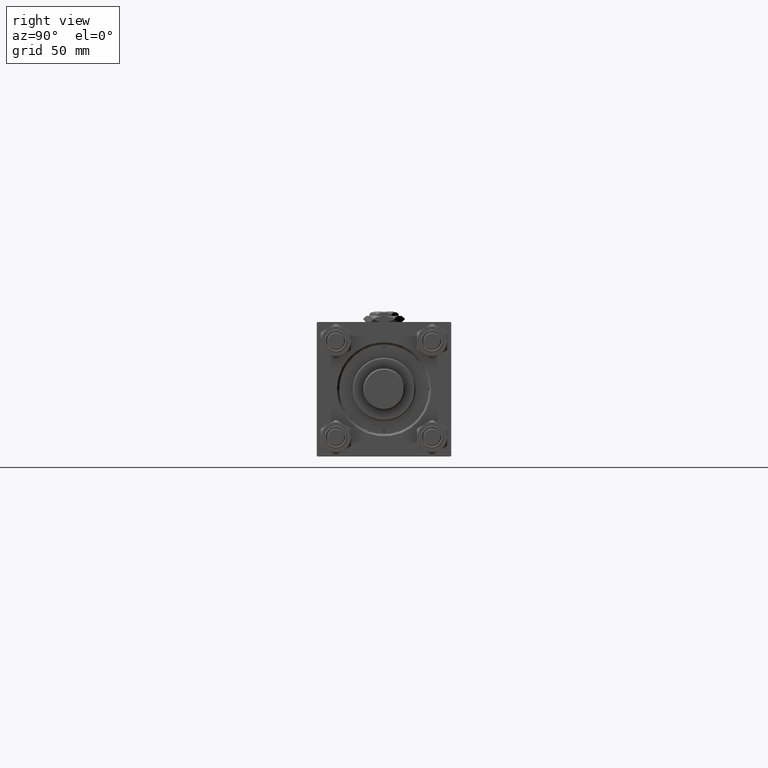
[diagram: clean part render]
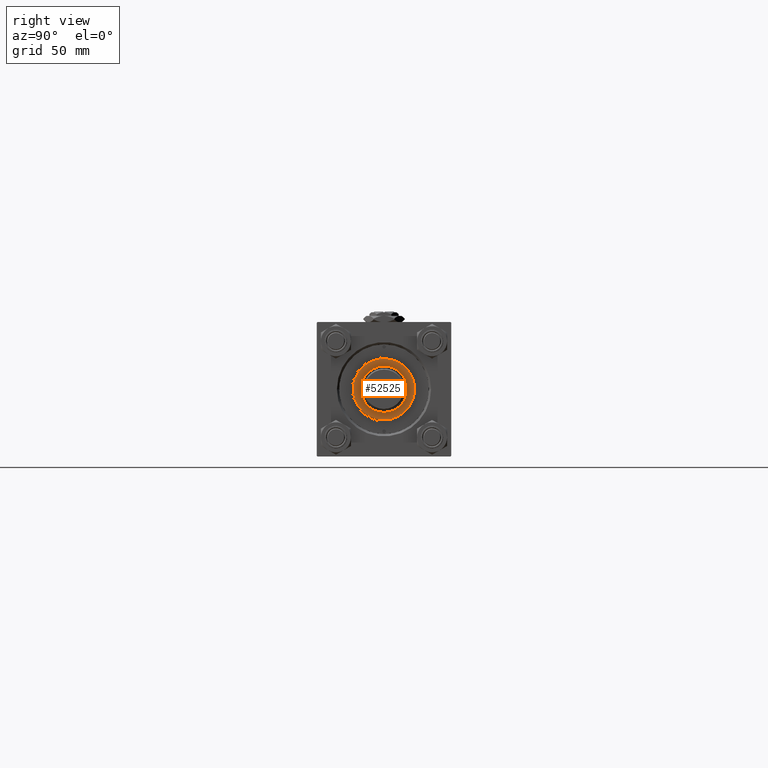
[diagram: same view with one face highlighted and labeled with its STEP entity id]
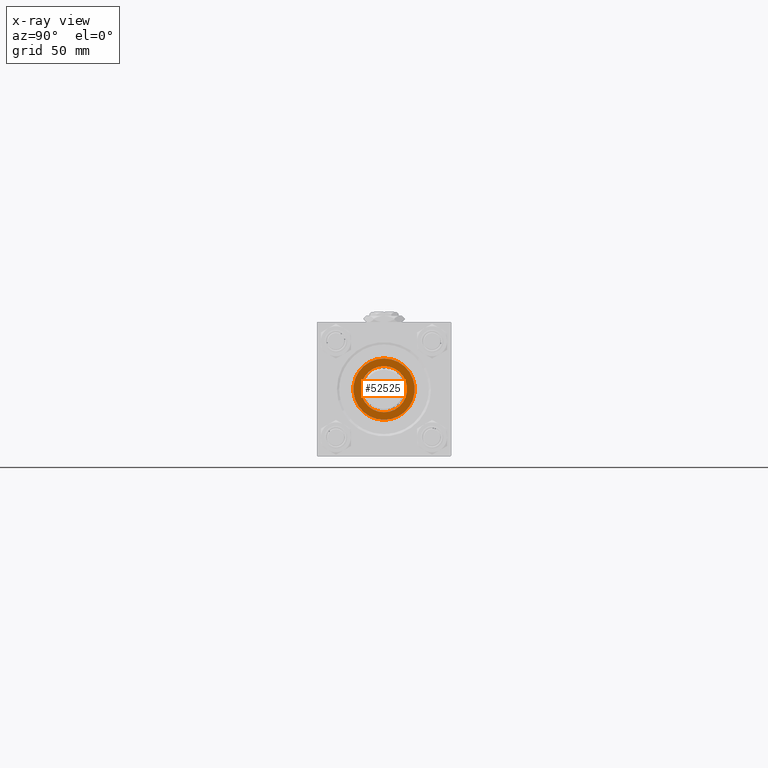
[diagram: x-ray of the same camera — body ghosted, the highlighted face saturated]
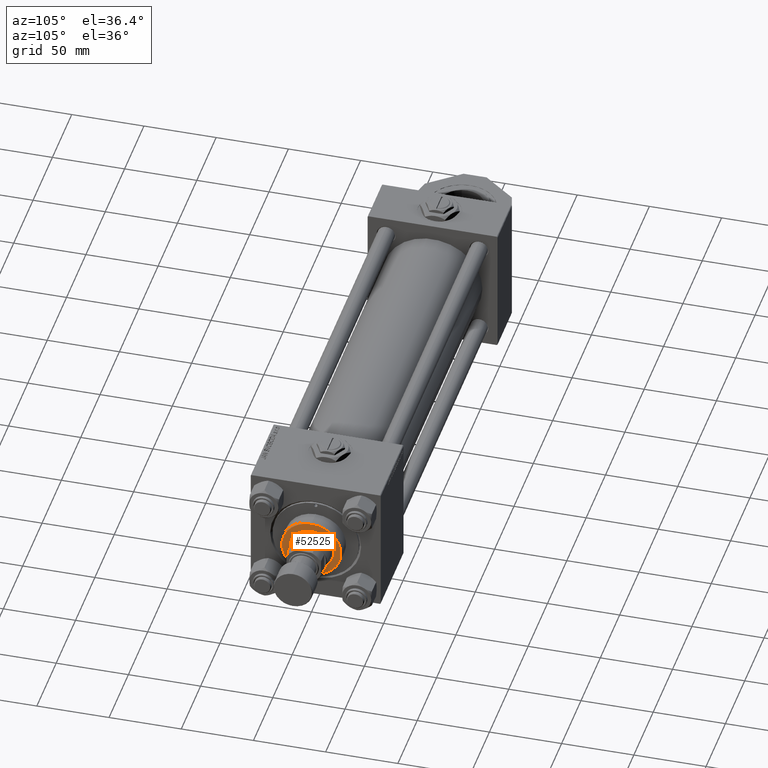
[diagram: same view with one face highlighted and labeled with its STEP entity id]
A machine part, right view. The second image highlights one B-rep face of the part: STEP entity #52525.
The next image is the same camera in x-ray: the body ghosted, the highlighted face saturated — about 0% of this face is hidden behind the body in this view.
A second angle (auxiliary view) of the same face is appended — the face is thin or edge-on in the first view.
In plain terms, the highlighted planar face has unit normal (1, 0, 0).
Its self-contained STEP definition (entity closure, byte-faithful):
#1840 = EDGE_CURVE ( 'NONE', #13399, #16840, #45270, .T. ) ;
#4281 = DIRECTION ( 'NONE',  ( 1.000000000000000000, 0.000000000000000000, 0.000000000000000000 ) ) ;
#4444 = CARTESIAN_POINT ( 'NONE',  ( -20.50000000000000355, 0.000000000000000000, 37.69999999999999574 ) ) ;
#5032 = ORIENTED_EDGE ( 'NONE', *, *, #31878, .T. ) ;
#9955 = EDGE_LOOP ( 'NONE', ( #5032, #14598 ) ) ;
#10026 = DIRECTION ( 'NONE',  ( 0.000000000000000000, 0.000000000000000000, 1.000000000000000000 ) ) ;
#10634 = EDGE_CURVE ( 'NONE', #44630, #10889, #12336, .T. ) ;
#10889 = VERTEX_POINT ( 'NONE', #37162 ) ;
#11214 = ORIENTED_EDGE ( 'NONE', *, *, #10634, .F. ) ;
#12336 = CIRCLE ( 'NONE', #37827, 15.50000000000000000 ) ;
#12565 = AXIS2_PLACEMENT_3D ( 'NONE', #13751, #25214, #25469 ) ;
#13399 = VERTEX_POINT ( 'NONE', #39752 ) ;
#13751 = CARTESIAN_POINT ( 'NONE',  ( 0.000000000000000000, 0.000000000000000000, 37.69999999999999574 ) ) ;
#14022 = FACE_OUTER_BOUND ( 'NONE', #9955, .T. ) ;
#14598 = ORIENTED_EDGE ( 'NONE', *, *, #1840, .T. ) ;
#15093 = CIRCLE ( 'NONE', #12565, 15.50000000000000000 ) ;
#15485 = AXIS2_PLACEMENT_3D ( 'NONE', #23505, #22710, #18973 ) ;
#16840 = VERTEX_POINT ( 'NONE', #4444 ) ;
#18001 = FACE_BOUND ( 'NONE', #36519, .T. ) ;
#18973 = DIRECTION ( 'NONE',  ( 1.000000000000000000, 0.000000000000000000, 0.000000000000000000 ) ) ;
#22002 = AXIS2_PLACEMENT_3D ( 'NONE', #45708, #37183, #37967 ) ;
#22710 = DIRECTION ( 'NONE',  ( 0.000000000000000000, 0.000000000000000000, 1.000000000000000000 ) ) ;
#23505 = CARTESIAN_POINT ( 'NONE',  ( 0.000000000000000000, 0.000000000000000000, 37.69999999999999574 ) ) ;
#24000 = CARTESIAN_POINT ( 'NONE',  ( 0.000000000000000000, 0.000000000000000000, 37.69999999999999574 ) ) ;
#24401 = EDGE_CURVE ( 'NONE', #10889, #44630, #15093, .T. ) ;
#25214 = DIRECTION ( 'NONE',  ( 0.000000000000000000, 0.000000000000000000, 1.000000000000000000 ) ) ;
#25469 = DIRECTION ( 'NONE',  ( 1.000000000000000000, 0.000000000000000000, 0.000000000000000000 ) ) ;
#26264 = DIRECTION ( 'NONE',  ( 1.000000000000000000, 0.000000000000000000, -0.000000000000000000 ) ) ;
#26426 = ORIENTED_EDGE ( 'NONE', *, *, #24401, .F. ) ;
#30269 = PLANE ( 'NONE',  #47840 ) ;
#31878 = EDGE_CURVE ( 'NONE', #16840, #13399, #45004, .T. ) ;
#33024 = DIRECTION ( 'NONE',  ( 0.000000000000000000, 0.000000000000000000, 1.000000000000000000 ) ) ;
#36519 = EDGE_LOOP ( 'NONE', ( #11214, #26426 ) ) ;
#37162 = CARTESIAN_POINT ( 'NONE',  ( -15.50000000000000000, 1.898202538678397557E-15, 37.69999999999999574 ) ) ;
#37183 = DIRECTION ( 'NONE',  ( 0.000000000000000000, 0.000000000000000000, 1.000000000000000000 ) ) ;
#37827 = AXIS2_PLACEMENT_3D ( 'NONE', #24000, #33024, #4281 ) ;
#37967 = DIRECTION ( 'NONE',  ( 1.000000000000000000, 0.000000000000000000, 0.000000000000000000 ) ) ;
#39752 = CARTESIAN_POINT ( 'NONE',  ( 20.50000000000000355, 2.541142108230758269E-15, 37.69999999999999574 ) ) ;
#43757 = CARTESIAN_POINT ( 'NONE',  ( 15.50000000000000000, 0.000000000000000000, 37.69999999999999574 ) ) ;
#44630 = VERTEX_POINT ( 'NONE', #43757 ) ;
#45004 = CIRCLE ( 'NONE', #22002, 20.50000000000000355 ) ;
#45270 = CIRCLE ( 'NONE', #15485, 20.50000000000000355 ) ;
#45708 = CARTESIAN_POINT ( 'NONE',  ( 0.000000000000000000, 0.000000000000000000, 37.69999999999999574 ) ) ;
#46516 = CARTESIAN_POINT ( 'NONE',  ( 0.000000000000000000, 0.000000000000000000, 37.69999999999999574 ) ) ;
#47840 = AXIS2_PLACEMENT_3D ( 'NONE', #46516, #10026, #26264 ) ;
#52525 = ADVANCED_FACE ( 'NONE', ( #18001, #14022 ), #30269, .T. ) ;